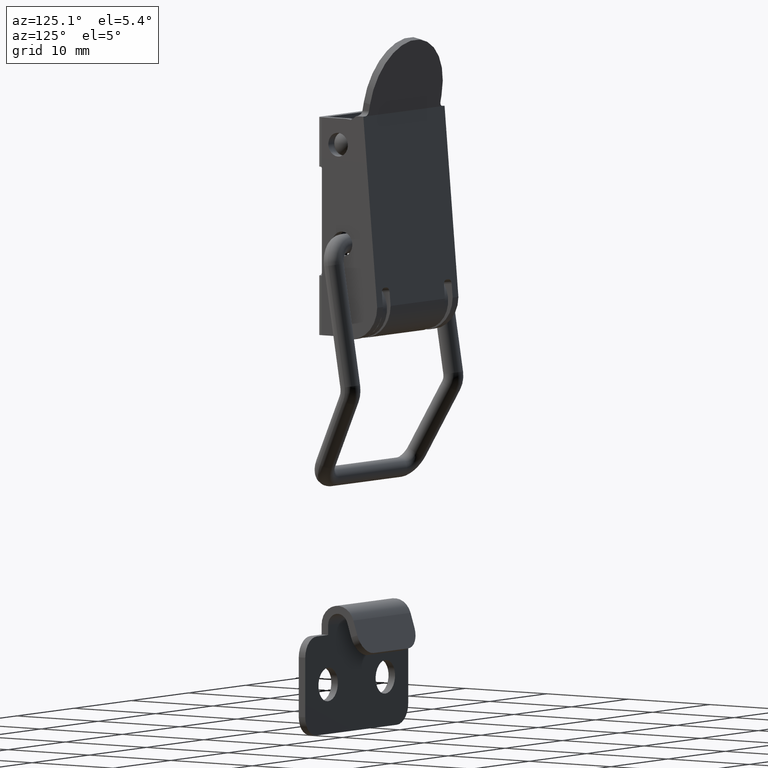
[diagram: clean part render]
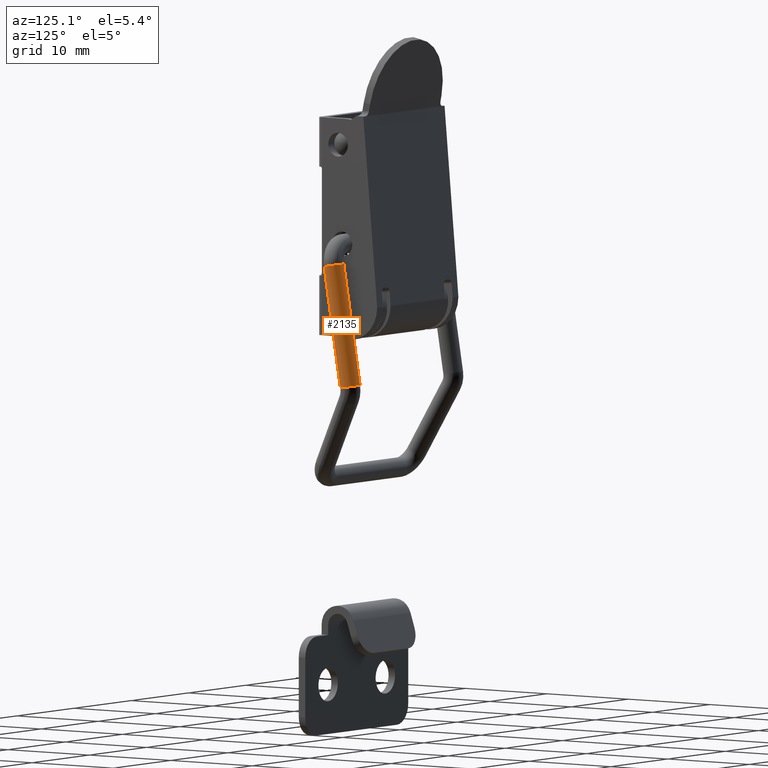
[diagram: same view with one face highlighted and labeled with its STEP entity id]
A machine part, auxiliary view. The second image highlights one B-rep face of the part: STEP entity #2135.
In plain terms, the highlighted cylindrical surface (bore or boss wall) has radius 1 mm, axis along (-0, 0.1626, -0.9867).
Its self-contained STEP definition (entity closure, byte-faithful):
#503=FACE_BOUND('',#770,.T.);
#605=FACE_OUTER_BOUND('',#769,.T.);
#769=EDGE_LOOP('',(#1859));
#770=EDGE_LOOP('',(#1860));
#897=CIRCLE('',#2356,1.);
#898=CIRCLE('',#2358,1.);
#1077=VERTEX_POINT('',#3596);
#1078=VERTEX_POINT('',#3599);
#1347=EDGE_CURVE('',#1077,#1077,#897,.T.);
#1348=EDGE_CURVE('',#1078,#1078,#898,.T.);
#1859=ORIENTED_EDGE('',*,*,#1347,.F.);
#1860=ORIENTED_EDGE('',*,*,#1348,.T.);
#2030=CYLINDRICAL_SURFACE('',#2357,1.);
#2135=ADVANCED_FACE('',(#605,#503),#2030,.T.);
#2356=AXIS2_PLACEMENT_3D('',#3597,#2920,#2921);
#2357=AXIS2_PLACEMENT_3D('',#3598,#2922,#2923);
#2358=AXIS2_PLACEMENT_3D('',#3600,#2924,#2925);
#2920=DIRECTION('center_axis',(-1.,-6.11927528283837E-16,0.));
#2921=DIRECTION('ref_axis',(6.11927528283837E-16,-1.,0.));
#2922=DIRECTION('center_axis',(-1.,-2.96059473233375E-16,0.));
#2923=DIRECTION('ref_axis',(2.96059473233375E-16,-1.,0.));
#2924=DIRECTION('center_axis',(-1.,-6.11927528283837E-16,0.));
#2925=DIRECTION('ref_axis',(6.11927528283837E-16,-1.,0.));
#3596=CARTESIAN_POINT('',(-14.319471341009,10.,1.22464679914735E-16));
#3597=CARTESIAN_POINT('Origin',(-14.319471341009,9.,0.));
#3598=CARTESIAN_POINT('Origin',(-2.,9.,0.));
#3599=CARTESIAN_POINT('',(-2.,10.,1.22464679914735E-16));
#3600=CARTESIAN_POINT('Origin',(-2.,9.,0.));